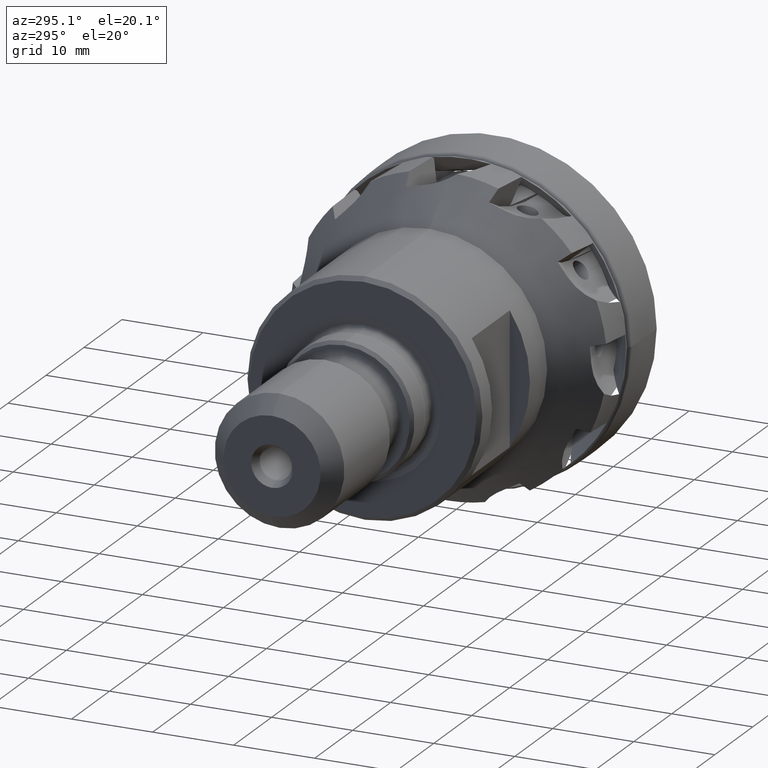
[diagram: clean part render]
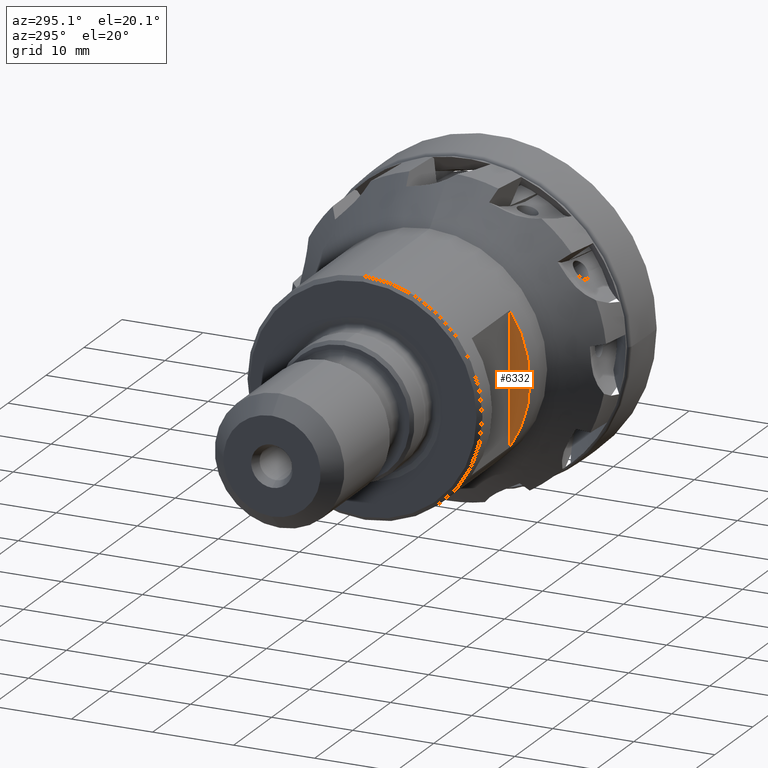
[diagram: same view with one face highlighted and labeled with its STEP entity id]
A machine part, auxiliary view. The second image highlights one B-rep face of the part: STEP entity #6332.
In plain terms, the highlighted planar face has unit normal (1, 0, -0).
Its self-contained STEP definition (entity closure, byte-faithful):
#138 = EDGE_LOOP ( 'NONE', ( #254, #263 ) ) ;
#254 = ORIENTED_EDGE ( 'NONE', *, *, #5796, .T. ) ;
#263 = ORIENTED_EDGE ( 'NONE', *, *, #5775, .T. ) ;
#3518 = CARTESIAN_POINT ( 'NONE',  ( -21.55000000000001500, -11.99999999999999800, 23.14999999999999900 ) ) ;
#3533 = LINE ( 'NONE', #3518, #8214 ) ;
#3538 = DIRECTION ( 'NONE',  ( -0.0000000000000000000, -0.0000000000000000000, -1.000000000000000000 ) ) ;
#3569 = CARTESIAN_POINT ( 'NONE',  ( -21.55000000000001500, 0.0000000000000000000, 0.0000000000000000000 ) ) ;
#3570 = DIRECTION ( 'NONE',  ( -1.000000000000000000, -0.0000000000000000000, 0.0000000000000000000 ) ) ;
#3571 = DIRECTION ( 'NONE',  ( 0.0000000000000000000, 0.0000000000000000000, -1.000000000000000000 ) ) ;
#4702 = AXIS2_PLACEMENT_3D ( 'NONE', #8450, #8455, #8456 ) ;
#4956 = CIRCLE ( 'NONE', #4958, 14.50000000000000000 ) ;
#4958 = AXIS2_PLACEMENT_3D ( 'NONE', #3569, #3570, #3571 ) ;
#5775 = EDGE_CURVE ( 'NONE', #9183, #9189, #3533, .T. ) ;
#5796 = EDGE_CURVE ( 'NONE', #9189, #9183, #4956, .T. ) ;
#6332 = ADVANCED_FACE ( 'NONE', ( #8452 ), #8453, .F. ) ;
#7317 = CARTESIAN_POINT ( 'NONE',  ( -21.55000000000001500, -11.99999999999999800, 8.139410298049861900 ) ) ;
#7321 = CARTESIAN_POINT ( 'NONE',  ( -21.55000000000001500, -11.99999999999999800, -8.139410298049861900 ) ) ;
#8214 = VECTOR ( 'NONE', #3538, 1000.000000000000000 ) ;
#8450 = CARTESIAN_POINT ( 'NONE',  ( -21.55000000000001500, -11.99999999999999800, 23.14999999999999900 ) ) ;
#8452 = FACE_OUTER_BOUND ( 'NONE', #138, .T. ) ;
#8453 = PLANE ( 'NONE',  #4702 ) ;
#8455 = DIRECTION ( 'NONE',  ( 1.000000000000000000, 0.0000000000000000000, -0.0000000000000000000 ) ) ;
#8456 = DIRECTION ( 'NONE',  ( -0.0000000000000000000, 0.0000000000000000000, -1.000000000000000000 ) ) ;
#9183 = VERTEX_POINT ( 'NONE', #7317 ) ;
#9189 = VERTEX_POINT ( 'NONE', #7321 ) ;